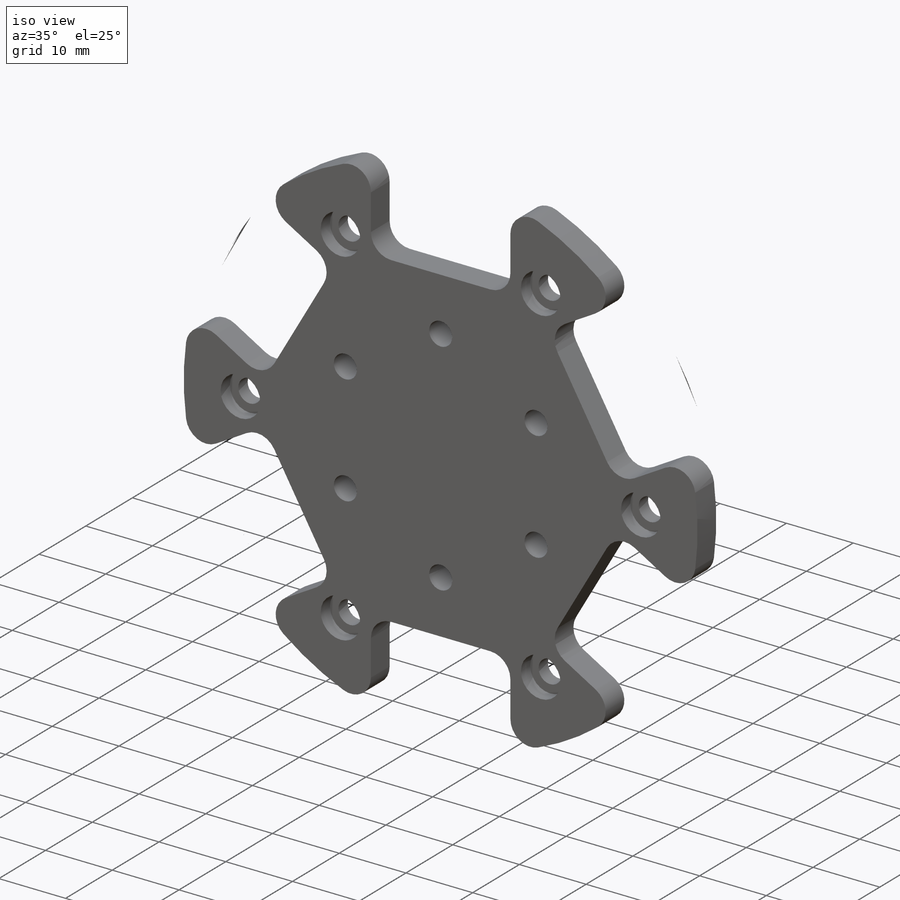
[diagram: iso view]
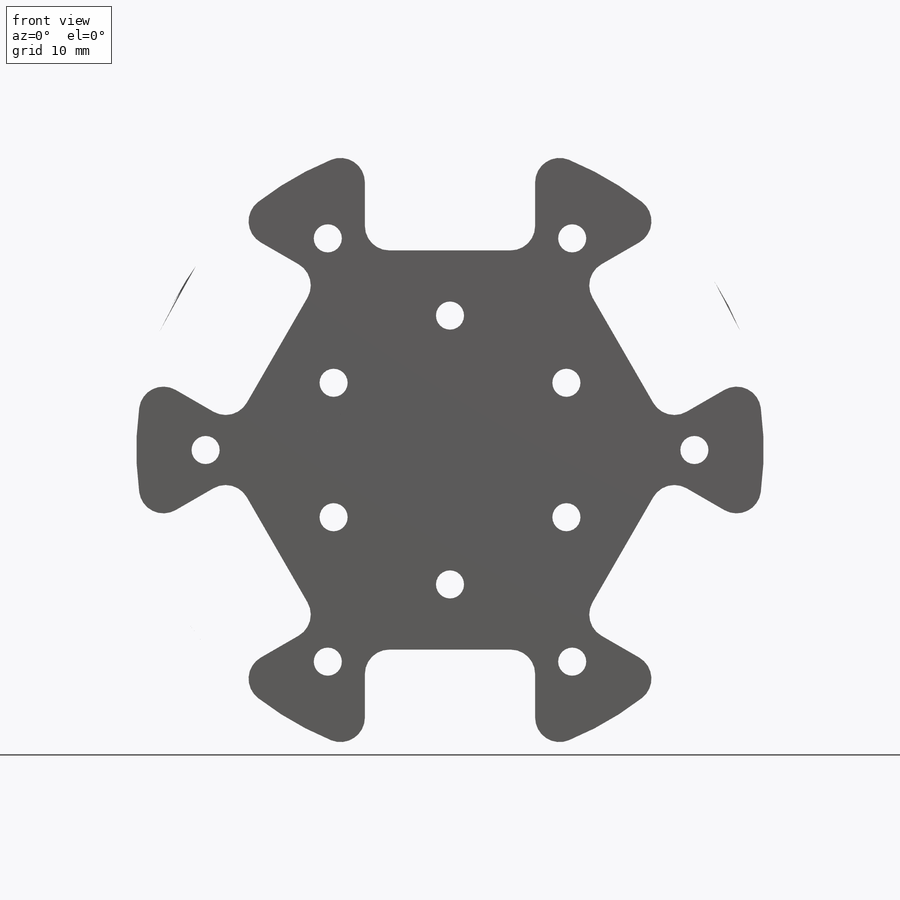
[diagram: front view]
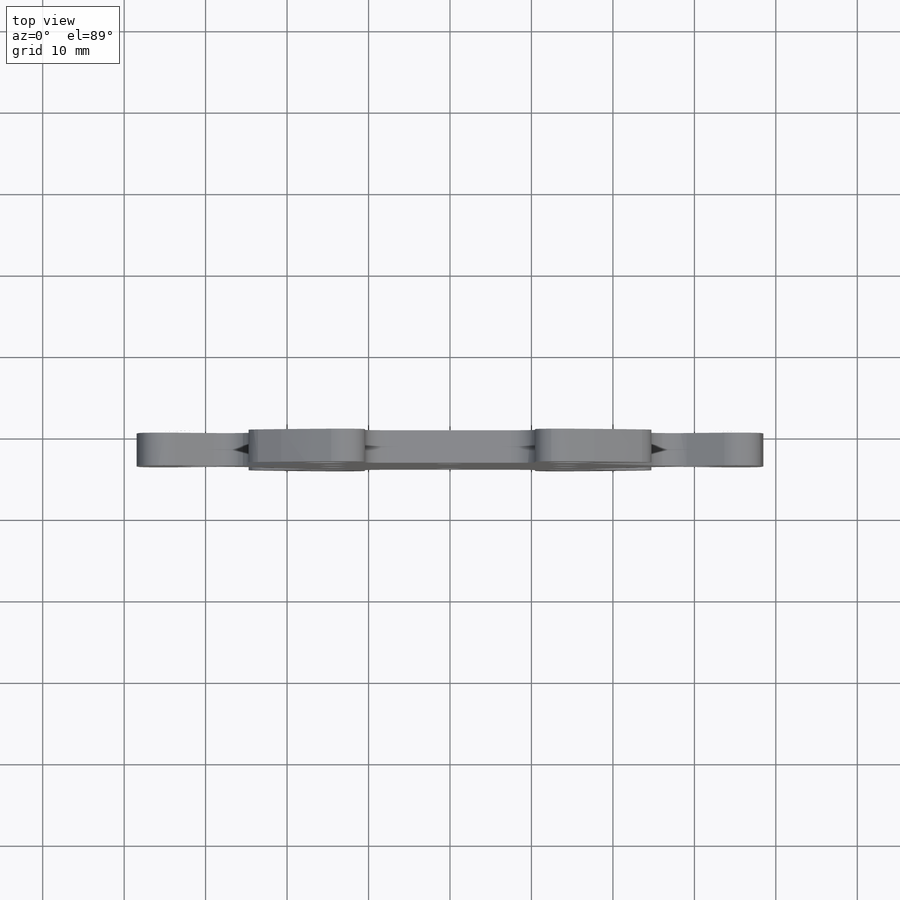
[diagram: top view]
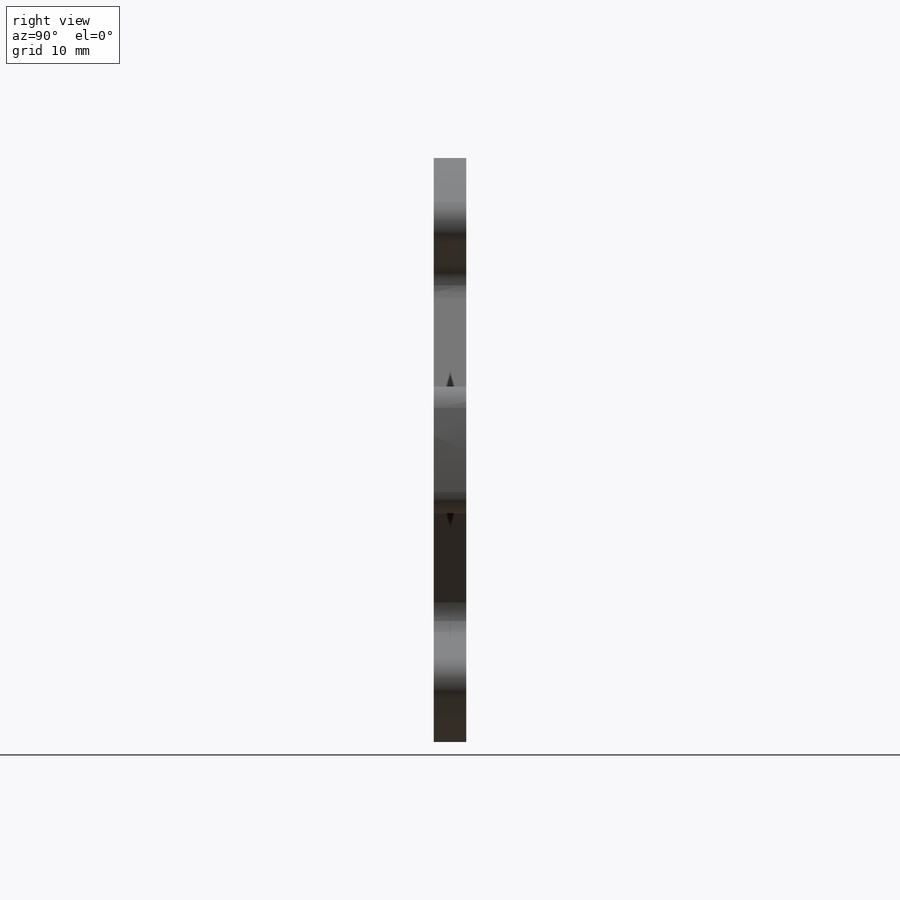
[diagram: right view]
SOLIDWORKS PART (.sldprt)
format: sldprt  version: not decoded by parser v0  size: 553,984 bytes
history: native  units: mm
features: sketch x4, extrude x2, cut_extrude x2, material x1, fillet x1 + 1 further entry (+17 scaffold rows collapsed; 3 parser-record rows omitted)
feature tree (31):
  scaffold x17  (default folders/planes/origin — collapsed)
  material  "ABS"
  "RobotHandParameters"
  parser-record x3  (decoder bookkeeping rows leaked as tree rows — omitted from the tree; the rows remain in map.json)
  sketch  "Sketch1"  dims[D1=77.0mm D2=60.0mm D4=3.45mm D3=15.0mm]
  extrude  "Main Body"  Depth=2mm
  sketch  "Sketch2"  dims[c1.D3=45.0mm c1.D4=6.0mm c1.D6=3.0mm c1.D10=3.45mm c1.D2=3.0mm c1.D1=67.0mm c2.D1=45.0deg c2.D2=67.0mm c3.D2=30.0deg c3.D5=6.0mm c3.D7=8.0mm c3.D8=3.0mm c3.D9=6.0mm c3.D11=8.0mm c3.D12=3.0mm c4.D9=5.0mm c4.D10=3.0mm c4.D11=9.0mm c4.D12=3.2mm c4.D13=8.2mm c4.D14=6.0mm c4.D2=67.0mm c5.D2=30.0deg c6.D2=~4.555639mm c7.D2=30.0deg c7.D5=14.5mm c8.D2=67.0mm c9.D2=30.0deg]
  cut_extrude  "Finger Base Slots 1"  Depth=4mm
  sketch  "Sketch5"  dims[D1=8.0mm D2=10.45mm D3=6.0]
  cut_extrude  "FingerBase Slots 2"  [1 undecoded]
  sketch  "Sketch6"  dims[D1=5.95mm D5=8.0mm D2=6.0 D3=6.0 D4=6.0]
  extrude  "M3 Screw Slots"  Depth=2mm
  fillet  "Top Plate Contouring"  Radius=3mm
decode coverage: 8 of 9 modeling features carry decoded parameters; 1 rows unclassified (native names shown)
note: ~ marks probable driven/reference dimensions
note: 1 parameter value undecoded
note: suppression state not decoded; provenance and decode notes live in map.json
